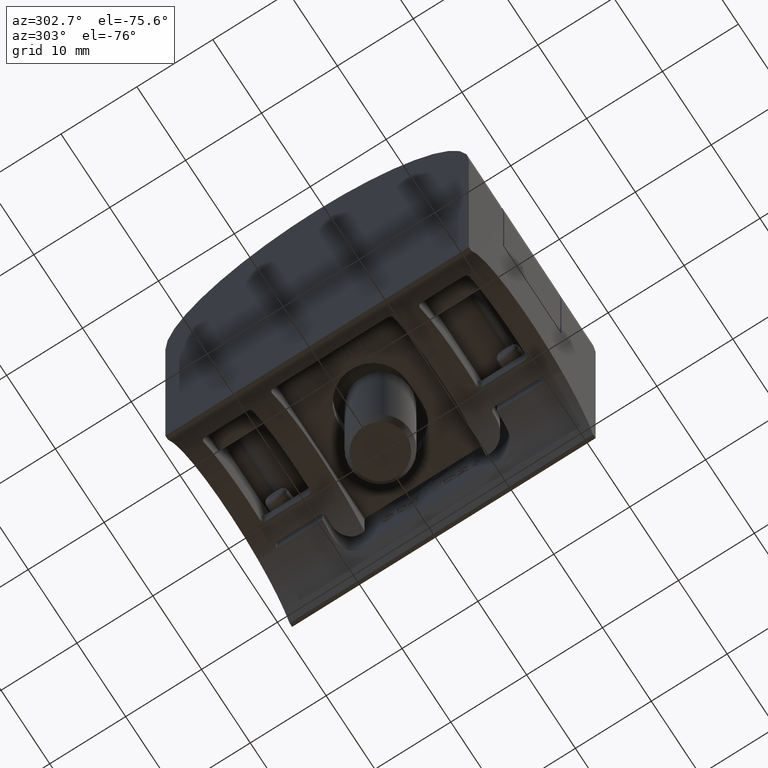
[diagram: clean part render]
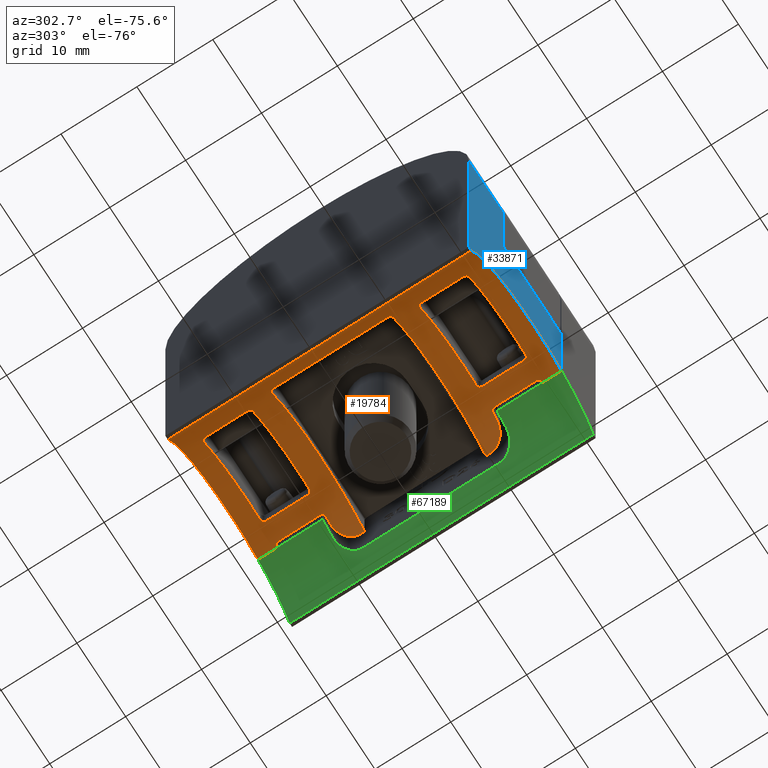
[diagram: same view with three faces highlighted in distinct colors, each labeled with its STEP entity id]
A machine part, auxiliary view with three faces highlighted in distinct colors.
Their STEP definitions:

[orange] entity #19784 — the highlighted cylindrical surface (partial cylindrical patch) has radius 13.45 mm, axis along (0, 1, 0).
#485 = CARTESIAN_POINT ( 'NONE',  ( 11.50000000000000000, -20.00000000000000355, -26.17594199133800004 ) ) ;
#693 = CARTESIAN_POINT ( 'NONE',  ( 14.89824602917667207, 9.703242428721132740, -28.36371242191209063 ) ) ;
#708 = CARTESIAN_POINT ( 'NONE',  ( 9.000000000000003553, -11.36647832932991165, -25.33884063097394090 ) ) ;
#722 = CARTESIAN_POINT ( 'NONE',  ( 11.51466624453556875, 11.36180625761915230, -26.18248772941737101 ) ) ;
#752 = CARTESIAN_POINT ( 'NONE',  ( 5.999999999999999112, -17.50000000000000000, -38.45000000000000284 ) ) ;
#803 = CARTESIAN_POINT ( 'NONE',  ( -3.116787472179068708, -17.50000000000000000, -28.56003619182556363 ) ) ;
#920 = ORIENTED_EDGE ( 'NONE', *, *, #3563, .F. ) ;
#926 = CARTESIAN_POINT ( 'NONE',  ( 15.20000000000000107, 8.499999999999996447, -28.63865452651880972 ) ) ;
#976 = DIRECTION ( 'NONE',  ( 0.000000000000000000, -1.000000000000000000, 0.000000000000000000 ) ) ;
#1126 = LINE ( 'NONE', #29620, #58291 ) ;
#1285 = CARTESIAN_POINT ( 'NONE',  ( 8.499999999999998224, -11.00000000000000000, -25.23438423682044629 ) ) ;
#1454 = CARTESIAN_POINT ( 'NONE',  ( 12.00000000000000000, 11.00000000000000000, -26.41245456914077039 ) ) ;
#1531 = CARTESIAN_POINT ( 'NONE',  ( -6.500000000000002665, -20.00000000000000355, -33.48487160286867237 ) ) ;
#1687 = B_SPLINE_CURVE_WITH_KNOTS ( 'NONE', 3,
 ( #46844, #14415, #69790, #63778, #30623, #52167 ),
 .UNSPECIFIED., .F., .F.,
 ( 4, 2, 4 ),
 ( 0.000000000000000000, 0.0004119517091872325126, 0.0008239034183744650252 ),
 .UNSPECIFIED. ) ;
#1957 = EDGE_CURVE ( 'NONE', #22225, #15214, #47179, .T. ) ;
#2061 = DIRECTION ( 'NONE',  ( 0.000000000000000000, 0.000000000000000000, -1.000000000000000000 ) ) ;
#2555 = CARTESIAN_POINT ( 'NONE',  ( -3.480638101571031484, 17.15542226786005386, -28.90945615330744900 ) ) ;
#2930 = ORIENTED_EDGE ( 'NONE', *, *, #24466, .F. ) ;
#3112 = ORIENTED_EDGE ( 'NONE', *, *, #7789, .F. ) ;
#3160 = VERTEX_POINT ( 'NONE', #56920 ) ;
#3343 = LINE ( 'NONE', #1531, #18952 ) ;
#3563 = EDGE_CURVE ( 'NONE', #3160, #20133, #12323, .T. ) ;
#3586 = EDGE_CURVE ( 'NONE', #27814, #52146, #32881, .T. ) ;
#3707 = CARTESIAN_POINT ( 'NONE',  ( -3.230471137412689764, -11.03847640144113207, -28.66640633115029857 ) ) ;
#3725 = DIRECTION ( 'NONE',  ( 0.000000000000000000, -1.000000000000000000, 0.000000000000000000 ) ) ;
#3858 = CARTESIAN_POINT ( 'NONE',  ( 11.50000000000000000, -17.00000000000000000, -26.17594199133800004 ) ) ;
#3919 = ORIENTED_EDGE ( 'NONE', *, *, #9674, .F. ) ;
#4310 = VERTEX_POINT ( 'NONE', #1285 ) ;
#4455 = VERTEX_POINT ( 'NONE', #46550 ) ;
#5014 = CARTESIAN_POINT ( 'NONE',  ( 8.499999999999998224, 17.50000000000000000, -25.23438423682044629 ) ) ;
#5423 = CARTESIAN_POINT ( 'NONE',  ( 13.02004663917994698, -11.00000000000000000, -26.97142511849517987 ) ) ;
#5528 = ORIENTED_EDGE ( 'NONE', *, *, #66053, .T. ) ;
#5664 = CARTESIAN_POINT ( 'NONE',  ( 14.15784761918223111, -10.53680026937990633, -27.75520414160551042 ) ) ;
#5848 = VERTEX_POINT ( 'NONE', #46754 ) ;
#6078 = ORIENTED_EDGE ( 'NONE', *, *, #35589, .T. ) ;
#6797 = CARTESIAN_POINT ( 'NONE',  ( 11.50000000000000000, 17.00000000000000000, -26.17594199133800004 ) ) ;
#6907 = LINE ( 'NONE', #56272, #40695 ) ;
#6931 = CARTESIAN_POINT ( 'NONE',  ( 15.20000000000000107, -8.000000000000000000, -28.63865452651880972 ) ) ;
#7165 = ORIENTED_EDGE ( 'NONE', *, *, #63368, .T. ) ;
#7255 = CARTESIAN_POINT ( 'NONE',  ( -3.499999999999999556, 17.00000000000000000, -28.92883935646499438 ) ) ;
#7266 = VECTOR ( 'NONE', #30347, 1000.000000000000000 ) ;
#7416 = CARTESIAN_POINT ( 'NONE',  ( 5.999999999999999112, -20.00000000000000355, -38.45000000000000284 ) ) ;
#7555 = CARTESIAN_POINT ( 'NONE',  ( 8.631068430568314298, 11.00000000000000000, -25.25917847133003136 ) ) ;
#7580 = CARTESIAN_POINT ( 'NONE',  ( -3.417236873706813061, 11.21522735533954673, -28.84686858059674464 ) ) ;
#7789 = EDGE_CURVE ( 'NONE', #34888, #40124, #50195, .T. ) ;
#8600 = CARTESIAN_POINT ( 'NONE',  ( 8.499999999999998224, 17.50000000000000000, -25.23438423682044629 ) ) ;
#8788 = CARTESIAN_POINT ( 'NONE',  ( 11.50000000000000000, -17.00000000000000000, -26.17594199133800004 ) ) ;
#8834 = CARTESIAN_POINT ( 'NONE',  ( 5.999999999999999112, 17.50000000000000000, -38.45000000000000284 ) ) ;
#9273 = CARTESIAN_POINT ( 'NONE',  ( -3.116788535425766504, -10.99999999999999822, -28.56003714921443049 ) ) ;
#9317 = VERTEX_POINT ( 'NONE', #6797 ) ;
#9325 = B_SPLINE_CURVE_WITH_KNOTS ( 'NONE', 3,
 ( #57907, #13641, #30571, #24552, #30337, #63014 ),
 .UNSPECIFIED., .F., .F.,
 ( 4, 2, 4 ),
 ( 0.000000000000000000, 0.0003946573699596246480, 0.0007893147399192492961 ),
 .UNSPECIFIED. ) ;
#9328 = CARTESIAN_POINT ( 'NONE',  ( 12.00000000000000000, -20.00000000000000355, -26.41245456914077039 ) ) ;
#9393 = CARTESIAN_POINT ( 'NONE',  ( -3.800000000000001155, 8.000000000000000000, -29.23791554532852288 ) ) ;
#9636 = VERTEX_POINT ( 'NONE', #6931 ) ;
#9674 = EDGE_CURVE ( 'NONE', #67375, #56448, #34447, .T. ) ;
#9731 = CARTESIAN_POINT ( 'NONE',  ( 11.56133594012009347, -11.22689549974325374, -26.20316668575613761 ) ) ;
#9847 = DIRECTION ( 'NONE',  ( 0.000000000000000000, 1.000000000000000000, 0.000000000000000000 ) ) ;
#9874 = CARTESIAN_POINT ( 'NONE',  ( 9.000000000000000000, -20.00000000000000355, -25.33884063097394090 ) ) ;
#9941 = CARTESIAN_POINT ( 'NONE',  ( 5.999999999999999112, -20.00000000000000355, -38.45000000000000284 ) ) ;
#10277 = ORIENTED_EDGE ( 'NONE', *, *, #63604, .T. ) ;
#10484 = CARTESIAN_POINT ( 'NONE',  ( 8.499999999999998224, 11.00000000000000000, -25.23438423682044629 ) ) ;
#10872 = CARTESIAN_POINT ( 'NONE',  ( -3.499999999999999556, 11.50000000000000355, -28.92883935646499438 ) ) ;
#11465 = CARTESIAN_POINT ( 'NONE',  ( 14.28329567557198310, -10.44117638296501660, -27.85228546513123504 ) ) ;
#11484 = VECTOR ( 'NONE', #22547, 1000.000000000000000 ) ;
#11552 = ORIENTED_EDGE ( 'NONE', *, *, #21408, .F. ) ;
#11692 = ORIENTED_EDGE ( 'NONE', *, *, #62028, .T. ) ;
#11911 = VECTOR ( 'NONE', #66588, 1000.000000000000000 ) ;
#12146 = CARTESIAN_POINT ( 'NONE',  ( 11.50000000000000000, 11.50000000000000178, -26.17594199133800004 ) ) ;
#12323 = LINE ( 'NONE', #50599, #58307 ) ;
#12326 = CARTESIAN_POINT ( 'NONE',  ( 11.49999999999999645, 11.43015185219893048, -26.17594199133798938 ) ) ;
#12348 = DIRECTION ( 'NONE',  ( 0.000000000000000000, 0.000000000000000000, -1.000000000000000000 ) ) ;
#12416 = CARTESIAN_POINT ( 'NONE',  ( -3.499999999999998224, -17.07921779552292918, -28.92883935646498372 ) ) ;
#12452 = CARTESIAN_POINT ( 'NONE',  ( 5.999999999999999112, 20.00000000000000000, -38.45000000000000284 ) ) ;
#12630 = ORIENTED_EDGE ( 'NONE', *, *, #25591, .T. ) ;
#12808 = EDGE_CURVE ( 'NONE', #20196, #20133, #49756, .T. ) ;
#12894 = CARTESIAN_POINT ( 'NONE',  ( 9.000000000000001776, 11.36653055818732483, -25.33884063097394090 ) ) ;
#13154 = CARTESIAN_POINT ( 'NONE',  ( -3.480624985987029074, 11.34449536735996489, -28.90944271706774060 ) ) ;
#13641 = CARTESIAN_POINT ( 'NONE',  ( 9.000000000000000000, -17.13346944181267162, -25.33884063097394090 ) ) ;
#13843 = EDGE_CURVE ( 'NONE', #32103, #41923, #71278, .T. ) ;
#14415 = CARTESIAN_POINT ( 'NONE',  ( 11.50000000000000178, 17.13937178416392015, -26.17594199133800004 ) ) ;
#14430 = DIRECTION ( 'NONE',  ( 0.000000000000000000, 0.000000000000000000, 1.000000000000000000 ) ) ;
#14671 = CARTESIAN_POINT ( 'NONE',  ( -3.116788535425766060, 17.50000000000000711, -28.56003714921443759 ) ) ;
#14737 = CIRCLE ( 'NONE', #43318, 13.44999999999999929 ) ;
#15111 = CARTESIAN_POINT ( 'NONE',  ( 5.999999999999999112, -11.00000000000000000, -38.45000000000000284 ) ) ;
#15214 = VERTEX_POINT ( 'NONE', #10872 ) ;
#15545 = CARTESIAN_POINT ( 'NONE',  ( 12.00000000000000000, -20.00000000000000355, -26.41245456914077039 ) ) ;
#15608 = FACE_BOUND ( 'NONE', #49776, .T. ) ;
#15657 = VECTOR ( 'NONE', #37169, 1000.000000000000000 ) ;
#15698 = VERTEX_POINT ( 'NONE', #64817 ) ;
#16224 = EDGE_CURVE ( 'NONE', #3160, #66927, #30585, .T. ) ;
#16306 = EDGE_CURVE ( 'NONE', #70873, #9636, #1126, .T. ) ;
#16418 = DIRECTION ( 'NONE',  ( 0.000000000000000000, 0.000000000000000000, 1.000000000000000000 ) ) ;
#16584 = DIRECTION ( 'NONE',  ( 0.000000000000000000, 1.000000000000000000, 0.000000000000000000 ) ) ;
#16837 = B_SPLINE_CURVE_WITH_KNOTS ( 'NONE', 3,
 ( #28086, #67047, #27359, #50336, #708, #39450 ),
 .UNSPECIFIED., .F., .F.,
 ( 4, 2, 4 ),
 ( 0.000000000000000000, 0.0003946608347926983118, 0.0007893216695853966236 ),
 .UNSPECIFIED. ) ;
#17042 = CARTESIAN_POINT ( 'NONE',  ( -3.800000000000001155, 8.000000000000000000, -29.23791554532852288 ) ) ;
#17449 = CARTESIAN_POINT ( 'NONE',  ( 11.50000000000000000, 11.50000000000000178, -26.17594199133800004 ) ) ;
#17518 = EDGE_CURVE ( 'NONE', #66788, #48210, #67846, .T. ) ;
#17565 = CARTESIAN_POINT ( 'NONE',  ( -3.499999999999999556, -17.00000000000000000, -28.92883935646499438 ) ) ;
#17898 = CARTESIAN_POINT ( 'NONE',  ( 14.51067331575046815, 10.23099226390288052, -28.03400459044137705 ) ) ;
#18066 = DIRECTION ( 'NONE',  ( 0.000000000000000000, -1.000000000000000000, 0.000000000000000000 ) ) ;
#18146 = ORIENTED_EDGE ( 'NONE', *, *, #67897, .F. ) ;
#18511 = DIRECTION ( 'NONE',  ( -0.000000000000000000, 1.000000000000000000, -0.000000000000000000 ) ) ;
#18794 = VERTEX_POINT ( 'NONE', #58238 ) ;
#18895 = CARTESIAN_POINT ( 'NONE',  ( -4.019377870066455749, -7.952884460722507320, -29.47665369427974724 ) ) ;
#18952 = VECTOR ( 'NONE', #18511, 1000.000000000000000 ) ;
#19095 = AXIS2_PLACEMENT_3D ( 'NONE', #752, #976, #12348 ) ;
#19190 = CARTESIAN_POINT ( 'NONE',  ( 8.499999999999998224, 11.00000000000000000, -25.23438423682044629 ) ) ;
#19482 = CARTESIAN_POINT ( 'NONE',  ( 12.00000000000000000, -11.00000000000000000, -26.41245456914077039 ) ) ;
#19770 = CARTESIAN_POINT ( 'NONE',  ( 9.000000000000003553, 17.13352167067008835, -25.33884063097394090 ) ) ;
#19784 = ADVANCED_FACE ( 'NONE', ( #30311, #35462, #15608 ), #47614, .F. ) ;
#20133 = VERTEX_POINT ( 'NONE', #30717 ) ;
#20196 = VERTEX_POINT ( 'NONE', #54131 ) ;
#20203 = CARTESIAN_POINT ( 'NONE',  ( -3.480638101571031484, -11.34457773213994614, -28.90945615330744900 ) ) ;
#20242 = ORIENTED_EDGE ( 'NONE', *, *, #42070, .T. ) ;
#20262 = CARTESIAN_POINT ( 'NONE',  ( -3.374676448403691520, 17.33711689858768068, -28.80518833197421458 ) ) ;
#20898 = CARTESIAN_POINT ( 'NONE',  ( 11.50000000000000178, -11.36062821583607807, -26.17594199133800004 ) ) ;
#20916 = DIRECTION ( 'NONE',  ( 0.000000000000000000, 0.000000000000000000, -1.000000000000000000 ) ) ;
#20944 = CARTESIAN_POINT ( 'NONE',  ( 9.000000000000000000, -17.00000000000000000, -25.33884063097394090 ) ) ;
#21408 = EDGE_CURVE ( 'NONE', #40124, #33346, #49414, .T. ) ;
#21512 = EDGE_CURVE ( 'NONE', #5848, #58676, #53534, .T. ) ;
#22041 = LINE ( 'NONE', #69519, #7266 ) ;
#22225 = VERTEX_POINT ( 'NONE', #53656 ) ;
#22547 = DIRECTION ( 'NONE',  ( -0.000000000000000000, 1.000000000000000000, -0.000000000000000000 ) ) ;
#23006 = CARTESIAN_POINT ( 'NONE',  ( 5.999999999999999112, -8.000000000000000000, -38.45000000000000284 ) ) ;
#23007 = CARTESIAN_POINT ( 'NONE',  ( 13.89368829465758104, 10.70202348153957495, -27.55877577456394789 ) ) ;
#23060 = ORIENTED_EDGE ( 'NONE', *, *, #17518, .F. ) ;
#23118 = ORIENTED_EDGE ( 'NONE', *, *, #1957, .F. ) ;
#23152 = DIRECTION ( 'NONE',  ( 0.000000000000000000, 1.000000000000000000, 0.000000000000000000 ) ) ;
#23255 = CARTESIAN_POINT ( 'NONE',  ( 8.499999999999998224, -17.50000000000000000, -25.23438423682044629 ) ) ;
#23354 = CARTESIAN_POINT ( 'NONE',  ( -3.480624985987027298, -17.15550463264003866, -28.90944271706774060 ) ) ;
#23551 = EDGE_CURVE ( 'NONE', #41935, #5848, #34290, .T. ) ;
#23672 = VECTOR ( 'NONE', #18066, 1000.000000000000000 ) ;
#23736 = CIRCLE ( 'NONE', #60259, 13.44999999999999929 ) ;
#23930 = ORIENTED_EDGE ( 'NONE', *, *, #28601, .T. ) ;
#24101 = CARTESIAN_POINT ( 'NONE',  ( 5.999999999999999112, 8.000000000000000000, -38.45000000000000284 ) ) ;
#24319 = CARTESIAN_POINT ( 'NONE',  ( -3.499999999999999556, 11.50000000000000355, -28.92883935646499438 ) ) ;
#24394 = DIRECTION ( 'NONE',  ( 0.000000000000000000, 1.000000000000000000, 0.000000000000000000 ) ) ;
#24453 = CARTESIAN_POINT ( 'NONE',  ( -3.800000000000001155, -8.000000000000000000, -29.23791554532852288 ) ) ;
#24466 = EDGE_CURVE ( 'NONE', #46536, #60356, #71626, .T. ) ;
#24477 = EDGE_CURVE ( 'NONE', #18794, #4455, #33189, .T. ) ;
#24552 = CARTESIAN_POINT ( 'NONE',  ( 8.759555130756153218, -17.44673513693500055, -25.28579463575531960 ) ) ;
#24610 = CIRCLE ( 'NONE', #30153, 13.44999999999999929 ) ;
#24866 = CARTESIAN_POINT ( 'NONE',  ( -3.500000000000000444, 17.07923721043015064, -28.92883935646499438 ) ) ;
#25159 = CARTESIAN_POINT ( 'NONE',  ( -4.300000000000001599, -7.583890562893208731, -29.80057805399691162 ) ) ;
#25296 = CARTESIAN_POINT ( 'NONE',  ( 12.00000000000000000, 17.50000000000000000, -26.41245456914077039 ) ) ;
#25524 = ORIENTED_EDGE ( 'NONE', *, *, #61712, .T. ) ;
#25591 = EDGE_CURVE ( 'NONE', #66799, #15698, #60975, .T. ) ;
#25726 = ORIENTED_EDGE ( 'NONE', *, *, #35274, .F. ) ;
#26070 = AXIS2_PLACEMENT_3D ( 'NONE', #7416, #24394, #68395 ) ;
#26323 = ORIENTED_EDGE ( 'NONE', *, *, #16224, .T. ) ;
#26497 = ORIENTED_EDGE ( 'NONE', *, *, #23551, .F. ) ;
#26663 = DIRECTION ( 'NONE',  ( -0.000000000000000000, 1.000000000000000000, -0.000000000000000000 ) ) ;
#26796 = EDGE_CURVE ( 'NONE', #46163, #41935, #53530, .T. ) ;
#26892 = EDGE_CURVE ( 'NONE', #48210, #46163, #65608, .T. ) ;
#27346 = VECTOR ( 'NONE', #65553, 1000.000000000000000 ) ;
#27359 = CARTESIAN_POINT ( 'NONE',  ( 8.759102418150586544, -11.05294006506115956, -25.28569817727868596 ) ) ;
#27463 = CARTESIAN_POINT ( 'NONE',  ( 15.10181010586828165, -9.216669129996807541, -28.54735559945195433 ) ) ;
#27538 = ORIENTED_EDGE ( 'NONE', *, *, #16306, .F. ) ;
#27628 = B_SPLINE_CURVE_WITH_KNOTS ( 'NONE', 3,
 ( #49482, #55009, #38122, #27463, #27936, #43706, #38603, #71689, #60124, #11465, #5664, #55256, #60615, #65688, #5423, #38361 ),
 .UNSPECIFIED., .F., .F.,
 ( 4, 2, 2, 2, 2, 2, 2, 4 ),
 ( 0.000000000000000000, 0.0005468264234543342454, 0.001093652846908668491, 0.001640479270363002845, 0.002187305693817336982, 0.002734132117271671335, 0.003280958540726005689, 0.004374611387634680035 ),
 .UNSPECIFIED. ) ;
#27814 = VERTEX_POINT ( 'NONE', #1454 ) ;
#27936 = CARTESIAN_POINT ( 'NONE',  ( 15.04409113667162678, -9.385807170587478154, -28.49429212487095597 ) ) ;
#27959 = LINE ( 'NONE', #485, #11484 ) ;
#28086 = CARTESIAN_POINT ( 'NONE',  ( 8.499999999999998224, -11.00000000000000000, -25.23438423682044629 ) ) ;
#28201 = CARTESIAN_POINT ( 'NONE',  ( 12.00000000000000000, 20.00000000000000000, -26.41245456914077039 ) ) ;
#28334 = CARTESIAN_POINT ( 'NONE',  ( 11.87540656933415129, 11.00000000000000000, -26.35035215895350191 ) ) ;
#28538 = DIRECTION ( 'NONE',  ( 0.000000000000000000, 0.000000000000000000, 1.000000000000000000 ) ) ;
#28601 = EDGE_CURVE ( 'NONE', #70873, #32783, #27628, .T. ) ;
#28707 = ORIENTED_EDGE ( 'NONE', *, *, #38733, .F. ) ;
#29013 = CARTESIAN_POINT ( 'NONE',  ( 12.70000000000000107, 11.00000000000000000, -26.78756028954490631 ) ) ;
#29620 = CARTESIAN_POINT ( 'NONE',  ( 15.20000000000000107, -20.00000000000000355, -28.63865452651880972 ) ) ;
#30110 = CARTESIAN_POINT ( 'NONE',  ( 11.56936935272592315, -17.26306579073444780, -26.20722555502909401 ) ) ;
#30153 = AXIS2_PLACEMENT_3D ( 'NONE', #49304, #9847, #16418 ) ;
#30311 = FACE_OUTER_BOUND ( 'NONE', #65237, .T. ) ;
#30337 = CARTESIAN_POINT ( 'NONE',  ( 8.631068430568314298, -17.50000000000000355, -25.25917847133003136 ) ) ;
#30347 = DIRECTION ( 'NONE',  ( -0.000000000000000000, 1.000000000000000000, -0.000000000000000000 ) ) ;
#30391 = EDGE_LOOP ( 'NONE', ( #70964, #69398, #7165, #11552, #3112, #18146, #38447, #71768 ) ) ;
#30571 = CARTESIAN_POINT ( 'NONE',  ( 8.944434467978718217, -17.26347514521611615, -25.32590943891845114 ) ) ;
#30585 = CIRCLE ( 'NONE', #68717, 13.44999999999999751 ) ;
#30623 = CARTESIAN_POINT ( 'NONE',  ( 11.87558577690494133, 17.50000000000000355, -26.35044148326225866 ) ) ;
#30642 = CARTESIAN_POINT ( 'NONE',  ( 8.631118969976018462, 17.50000000000000355, -25.25918803187729722 ) ) ;
#30717 = CARTESIAN_POINT ( 'NONE',  ( 15.20000000000000107, 8.499999999999996447, -28.63865452651880972 ) ) ;
#30729 = ORIENTED_EDGE ( 'NONE', *, *, #47998, .F. ) ;
#30877 = CARTESIAN_POINT ( 'NONE',  ( 8.944408087051730405, 17.26362492424279438, -25.32590194906893544 ) ) ;
#31361 = CARTESIAN_POINT ( 'NONE',  ( -3.499999999999999556, 17.00000000000000000, -28.92883935646499438 ) ) ;
#31636 = ORIENTED_EDGE ( 'NONE', *, *, #13843, .T. ) ;
#32103 = VERTEX_POINT ( 'NONE', #66862 ) ;
#32294 = CIRCLE ( 'NONE', #44625, 13.44999999999999751 ) ;
#32783 = VERTEX_POINT ( 'NONE', #61675 ) ;
#32881 = B_SPLINE_CURVE_WITH_KNOTS ( 'NONE', 3,
 ( #39698, #28334, #45296, #67058, #33649, #722, #12326, #17449 ),
 .UNSPECIFIED., .F., .F.,
 ( 4, 2, 2, 4 ),
 ( 0.000000000000000000, 0.0004119365206307883261, 0.0006179047809461808358, 0.0008238730412615733996 ),
 .UNSPECIFIED. ) ;
#33179 = CARTESIAN_POINT ( 'NONE',  ( 11.50000000000000000, -20.00000000000000355, -26.17594199133800004 ) ) ;
#33189 = B_SPLINE_CURVE_WITH_KNOTS ( 'NONE', 3,
 ( #53315, #43176, #20203, #36879, #48005, #3707, #9273, #42939 ),
 .UNSPECIFIED., .F., .F.,
 ( 4, 2, 2, 4 ),
 ( 0.000000000000000000, 0.0002335814450704163520, 0.0004671628901408327039, 0.0009343257802816635647 ),
 .UNSPECIFIED. ) ;
#33275 = CARTESIAN_POINT ( 'NONE',  ( 9.000000000000000000, 17.00000000000000000, -25.33884063097394090 ) ) ;
#33346 = VERTEX_POINT ( 'NONE', #17565 ) ;
#33465 = CARTESIAN_POINT ( 'NONE',  ( -4.211134404573490642, 7.793891276124054635, -29.69569120716201382 ) ) ;
#33579 = LINE ( 'NONE', #33179, #11911 ) ;
#33649 = CARTESIAN_POINT ( 'NONE',  ( 11.56936935272592670, 11.23693420926555397, -26.20722555502909401 ) ) ;
#33700 = CARTESIAN_POINT ( 'NONE',  ( -4.167484031559555824, 7.844674103367463402, -29.64488761452970067 ) ) ;
#33854 = CARTESIAN_POINT ( 'NONE',  ( 13.32313539717053885, 10.94066499471007781, -27.16303500899367762 ) ) ;
#33969 = CARTESIAN_POINT ( 'NONE',  ( -2.999999999999999112, -17.50000000000000000, -28.45487618886089720 ) ) ;
#34102 = CARTESIAN_POINT ( 'NONE',  ( 15.20000000000000284, 8.685665373290950342, -28.63865452651880616 ) ) ;
#34290 = LINE ( 'NONE', #9874, #27346 ) ;
#34303 = DIRECTION ( 'NONE',  ( 0.000000000000000000, -1.000000000000000000, 0.000000000000000000 ) ) ;
#34447 = CIRCLE ( 'NONE', #26070, 13.44999999999999929 ) ;
#34579 = CARTESIAN_POINT ( 'NONE',  ( 14.61957888634192315, 10.10994047975543353, -28.12423381090563623 ) ) ;
#34888 = VERTEX_POINT ( 'NONE', #23255 ) ;
#35175 = CARTESIAN_POINT ( 'NONE',  ( 8.759555130756153218, 11.05326486306500122, -25.28579463575531960 ) ) ;
#35228 = CARTESIAN_POINT ( 'NONE',  ( -3.499999999999999556, -20.00000000000000355, -28.92883935646499438 ) ) ;
#35274 = EDGE_CURVE ( 'NONE', #9317, #39585, #1687, .T. ) ;
#35462 = FACE_BOUND ( 'NONE', #30391, .T. ) ;
#35589 = EDGE_CURVE ( 'NONE', #27814, #20196, #14737, .T. ) ;
#35663 = CARTESIAN_POINT ( 'NONE',  ( -3.230655488116156437, 11.03872484848198354, -28.66658760831958830 ) ) ;
#35741 = ORIENTED_EDGE ( 'NONE', *, *, #21512, .F. ) ;
#35911 = DIRECTION ( 'NONE',  ( -0.000000000000000000, 1.000000000000000000, -0.000000000000000000 ) ) ;
#36047 = CARTESIAN_POINT ( 'NONE',  ( -4.167032218218342798, -7.845128266877813061, -29.64436690656613393 ) ) ;
#36288 = CARTESIAN_POINT ( 'NONE',  ( -4.300000000000001599, -7.500000000000000000, -29.80057805399690807 ) ) ;
#36879 = CARTESIAN_POINT ( 'NONE',  ( -3.417373484413046558, -11.21545046031054582, -28.84700294914667396 ) ) ;
#36926 = CARTESIAN_POINT ( 'NONE',  ( 9.000000000000000000, 17.00000000000000000, -25.33884063097394090 ) ) ;
#37114 = CARTESIAN_POINT ( 'NONE',  ( 12.00000000000000000, -11.00000000000000000, -26.41245456914077039 ) ) ;
#37121 = LINE ( 'NONE', #15545, #45835 ) ;
#37169 = DIRECTION ( 'NONE',  ( 0.000000000000000000, -1.000000000000000000, 0.000000000000000000 ) ) ;
#37310 = DIRECTION ( 'NONE',  ( 0.000000000000000000, 0.000000000000000000, 1.000000000000000000 ) ) ;
#37346 = ORIENTED_EDGE ( 'NONE', *, *, #3586, .F. ) ;
#38122 = CARTESIAN_POINT ( 'NONE',  ( 15.17962903114094964, -8.865713404819141275, -28.61944944687095571 ) ) ;
#38152 = VERTEX_POINT ( 'NONE', #44713 ) ;
#38361 = CARTESIAN_POINT ( 'NONE',  ( 12.70000000000000107, -11.00000000000000000, -26.78756028954490631 ) ) ;
#38447 = ORIENTED_EDGE ( 'NONE', *, *, #47986, .T. ) ;
#38518 = EDGE_CURVE ( 'NONE', #66799, #66927, #42113, .T. ) ;
#38603 = CARTESIAN_POINT ( 'NONE',  ( 14.81434557677254737, -9.843946814570108117, -28.28998887233768400 ) ) ;
#38700 = VERTEX_POINT ( 'NONE', #3858 ) ;
#38733 = EDGE_CURVE ( 'NONE', #38700, #46536, #27959, .T. ) ;
#39285 = CARTESIAN_POINT ( 'NONE',  ( -4.278324039308303739, 7.663124781151160470, -29.77467618981274100 ) ) ;
#39437 = CARTESIAN_POINT ( 'NONE',  ( 15.10024297222439316, 9.221999572938662126, -28.54591217033654615 ) ) ;
#39450 = CARTESIAN_POINT ( 'NONE',  ( 9.000000000000000000, -11.50000000000000178, -25.33884063097394090 ) ) ;
#39509 = CARTESIAN_POINT ( 'NONE',  ( 15.20000000000000107, -8.499999999999998224, -28.63865452651880972 ) ) ;
#39543 = CARTESIAN_POINT ( 'NONE',  ( -3.417236873706812172, -17.28477264466046392, -28.84686858059674464 ) ) ;
#39585 = VERTEX_POINT ( 'NONE', #25296 ) ;
#39672 = CARTESIAN_POINT ( 'NONE',  ( 14.81277762783038199, 9.846425692188125467, -28.28862518887683919 ) ) ;
#39698 = CARTESIAN_POINT ( 'NONE',  ( 12.00000000000000000, 11.00000000000000000, -26.41245456914077039 ) ) ;
#40124 = VERTEX_POINT ( 'NONE', #66070 ) ;
#40288 = CARTESIAN_POINT ( 'NONE',  ( -3.374280382620928442, 11.16249685173698580, -28.80480523786568625 ) ) ;
#40347 = CARTESIAN_POINT ( 'NONE',  ( -6.500000000000002665, -20.00000000000000355, -33.48487160286867237 ) ) ;
#40695 = VECTOR ( 'NONE', #34303, 1000.000000000000000 ) ;
#40912 = CARTESIAN_POINT ( 'NONE',  ( -3.856894653083691615, -7.999999999999998224, -29.29844121712014626 ) ) ;
#40980 = CARTESIAN_POINT ( 'NONE',  ( 9.000000000000000000, 11.50000000000000355, -25.33884063097394090 ) ) ;
#41256 = CARTESIAN_POINT ( 'NONE',  ( 12.00000000000000000, -17.50000000000000000, -26.41245456914077039 ) ) ;
#41923 = VERTEX_POINT ( 'NONE', #28201 ) ;
#41935 = VERTEX_POINT ( 'NONE', #33275 ) ;
#42018 = ORIENTED_EDGE ( 'NONE', *, *, #38518, .F. ) ;
#42070 = EDGE_CURVE ( 'NONE', #67375, #32103, #3343, .T. ) ;
#42113 = B_SPLINE_CURVE_WITH_KNOTS ( 'NONE', 3,
 ( #61302, #50652, #39285, #33465, #33700, #49933, #44645, #17042 ),
 .UNSPECIFIED., .F., .F.,
 ( 4, 2, 2, 4 ),
 ( 0.000000000000000000, 0.0002469649858477842826, 0.0004939299716955685652, 0.0009878599433911379978 ),
 .UNSPECIFIED. ) ;
#42329 = EDGE_CURVE ( 'NONE', #56448, #61723, #37121, .T. ) ;
#42939 = CARTESIAN_POINT ( 'NONE',  ( -2.999999999999999112, -11.00000000000000000, -28.45487618886089720 ) ) ;
#43176 = CARTESIAN_POINT ( 'NONE',  ( -3.499999999999999556, -11.42076278956985114, -28.92883935646499438 ) ) ;
#43318 = AXIS2_PLACEMENT_3D ( 'NONE', #60851, #16584, #44412 ) ;
#43566 = EDGE_CURVE ( 'NONE', #9317, #52146, #33579, .T. ) ;
#43706 = CARTESIAN_POINT ( 'NONE',  ( 14.90115370763255420, -9.697639326284056338, -28.36629202840403252 ) ) ;
#43809 = EDGE_CURVE ( 'NONE', #38152, #15698, #68147, .T. ) ;
#44412 = DIRECTION ( 'NONE',  ( 0.000000000000000000, 0.000000000000000000, 1.000000000000000000 ) ) ;
#44625 = AXIS2_PLACEMENT_3D ( 'NONE', #15111, #3725, #20916 ) ;
#44645 = CARTESIAN_POINT ( 'NONE',  ( -3.913724704381053687, 7.999999999999998224, -29.35889816423722110 ) ) ;
#44713 = CARTESIAN_POINT ( 'NONE',  ( -3.800000000000001155, -8.000000000000000000, -29.23791554532852288 ) ) ;
#44801 = CARTESIAN_POINT ( 'NONE',  ( 12.00000000000000000, -17.50000000000000000, -26.41245456914077039 ) ) ;
#45085 = CARTESIAN_POINT ( 'NONE',  ( -4.300000000000001599, 7.500000000000000000, -29.80057805399690807 ) ) ;
#45137 = CARTESIAN_POINT ( 'NONE',  ( -3.499999999999999556, -17.00000000000000000, -28.92883935646499438 ) ) ;
#45296 = CARTESIAN_POINT ( 'NONE',  ( 11.75212678668922273, 11.04617825859952518, -26.29160017484655398 ) ) ;
#45626 = CARTESIAN_POINT ( 'NONE',  ( 11.87540656933415129, -17.50000000000000000, -26.35035215895350191 ) ) ;
#45680 = CARTESIAN_POINT ( 'NONE',  ( 5.999999999999999112, -11.00000000000000000, -38.45000000000000284 ) ) ;
#45835 = VECTOR ( 'NONE', #59802, 1000.000000000000000 ) ;
#46163 = VERTEX_POINT ( 'NONE', #5014 ) ;
#46256 = VECTOR ( 'NONE', #69827, 1000.000000000000000 ) ;
#46308 = EDGE_CURVE ( 'NONE', #4310, #4455, #53216, .T. ) ;
#46536 = VERTEX_POINT ( 'NONE', #54266 ) ;
#46550 = CARTESIAN_POINT ( 'NONE',  ( -2.999999999999999112, -11.00000000000000000, -28.45487618886089720 ) ) ;
#46591 = AXIS2_PLACEMENT_3D ( 'NONE', #9941, #26663, #37310 ) ;
#46754 = CARTESIAN_POINT ( 'NONE',  ( 9.000000000000000000, 11.50000000000000355, -25.33884063097394090 ) ) ;
#46844 = CARTESIAN_POINT ( 'NONE',  ( 11.50000000000000000, 17.00000000000000000, -26.17594199133800004 ) ) ;
#47179 = B_SPLINE_CURVE_WITH_KNOTS ( 'NONE', 3,
 ( #68798, #51643, #35663, #40288, #7580, #13154, #51880, #24319 ),
 .UNSPECIFIED., .F., .F.,
 ( 4, 2, 2, 4 ),
 ( 0.000000000000000000, 0.0004668484056165501809, 0.0007002726084248221813, 0.0009336968112330941818 ),
 .UNSPECIFIED. ) ;
#47532 = CARTESIAN_POINT ( 'NONE',  ( 11.49999999999999822, -17.06984814780107484, -26.17594199133798938 ) ) ;
#47576 = DIRECTION ( 'NONE',  ( -0.000000000000000000, 1.000000000000000000, 0.000000000000000000 ) ) ;
#47614 = CYLINDRICAL_SURFACE ( 'NONE', #46591, 13.44999999999999929 ) ;
#47740 = AXIS2_PLACEMENT_3D ( 'NONE', #45680, #62573, #2061 ) ;
#47986 = EDGE_CURVE ( 'NONE', #49721, #49143, #22041, .T. ) ;
#47998 = EDGE_CURVE ( 'NONE', #61723, #38700, #58454, .T. ) ;
#48005 = CARTESIAN_POINT ( 'NONE',  ( -3.374676448403692408, -11.16288310141231577, -28.80518833197422168 ) ) ;
#48045 = CARTESIAN_POINT ( 'NONE',  ( 8.759102418150584768, 17.44705993493884577, -25.28569817727868596 ) ) ;
#48210 = VERTEX_POINT ( 'NONE', #66851 ) ;
#49111 = ORIENTED_EDGE ( 'NONE', *, *, #43566, .T. ) ;
#49143 = VERTEX_POINT ( 'NONE', #64590 ) ;
#49304 = CARTESIAN_POINT ( 'NONE',  ( 5.999999999999999112, 11.00000000000000000, -38.45000000000000284 ) ) ;
#49355 = EDGE_CURVE ( 'NONE', #66788, #15214, #6907, .T. ) ;
#49414 = B_SPLINE_CURVE_WITH_KNOTS ( 'NONE', 3,
 ( #33969, #803, #51385, #56428, #39543, #23354, #12416, #45137 ),
 .UNSPECIFIED., .F., .F.,
 ( 4, 2, 2, 4 ),
 ( 0.000000000000000000, 0.0004668484056165488256, 0.0007002726084248197961, 0.0009336968112330908207 ),
 .UNSPECIFIED. ) ;
#49482 = CARTESIAN_POINT ( 'NONE',  ( 15.20000000000000107, -8.499999999999998224, -28.63865452651880972 ) ) ;
#49721 = VERTEX_POINT ( 'NONE', #20944 ) ;
#49756 = B_SPLINE_CURVE_WITH_KNOTS ( 'NONE', 3,
 ( #29013, #67258, #33854, #50795, #23007, #62397, #56312, #17898, #34579, #39672, #693, #56088, #39437, #55856, #34102, #926 ),
 .UNSPECIFIED., .F., .F.,
 ( 4, 2, 2, 2, 2, 2, 2, 4 ),
 ( 0.000000000000000000, 0.001088733333245754708, 0.001633099999868632820, 0.002177466666491511150, 0.002721833333114389263, 0.003266199999737266942, 0.003810566666360145488, 0.004354933332983024034 ),
 .UNSPECIFIED. ) ;
#49776 = EDGE_LOOP ( 'NONE', ( #11692, #35741, #26497, #54791, #70468, #23060, #69141, #23118 ) ) ;
#49933 = CARTESIAN_POINT ( 'NONE',  ( -4.024497122124611082, 7.963659407422602143, -29.48156089056517359 ) ) ;
#50043 = ORIENTED_EDGE ( 'NONE', *, *, #42329, .F. ) ;
#50195 = CIRCLE ( 'NONE', #19095, 13.44999999999999751 ) ;
#50336 = CARTESIAN_POINT ( 'NONE',  ( 8.944408087051732181, -11.23637507575719852, -25.32590194906893544 ) ) ;
#50599 = CARTESIAN_POINT ( 'NONE',  ( 15.20000000000000107, -20.00000000000000355, -28.63865452651880972 ) ) ;
#50652 = CARTESIAN_POINT ( 'NONE',  ( -4.300000000000001599, 7.583895603082869918, -29.80057805399691873 ) ) ;
#50795 = CARTESIAN_POINT ( 'NONE',  ( 13.75404523009153834, 10.77217395632988506, -27.45874755734961781 ) ) ;
#50823 = DIRECTION ( 'NONE',  ( -0.000000000000000000, 1.000000000000000000, -0.000000000000000000 ) ) ;
#51010 = EDGE_CURVE ( 'NONE', #4310, #49143, #16837, .T. ) ;
#51169 = ORIENTED_EDGE ( 'NONE', *, *, #12808, .T. ) ;
#51385 = CARTESIAN_POINT ( 'NONE',  ( -3.230655488116158658, -17.46127515151801290, -28.66658760831959896 ) ) ;
#51643 = CARTESIAN_POINT ( 'NONE',  ( -3.116787472179069152, 10.99999999999999822, -28.56003619182556363 ) ) ;
#51880 = CARTESIAN_POINT ( 'NONE',  ( -3.500000000000000444, 11.42078220447706727, -28.92883935646500504 ) ) ;
#52128 = CARTESIAN_POINT ( 'NONE',  ( 11.75212678668922273, -17.45382174140047127, -26.29160017484655398 ) ) ;
#52146 = VERTEX_POINT ( 'NONE', #12146 ) ;
#52167 = CARTESIAN_POINT ( 'NONE',  ( 12.00000000000000000, 17.50000000000000000, -26.41245456914077039 ) ) ;
#52602 = CARTESIAN_POINT ( 'NONE',  ( 11.51466624453557053, -17.13819374238084237, -26.18248772941737101 ) ) ;
#52886 = CARTESIAN_POINT ( 'NONE',  ( -3.417373484413047446, 17.28454953968945418, -28.84700294914668461 ) ) ;
#53053 = CARTESIAN_POINT ( 'NONE',  ( 12.00000000000000000, -20.00000000000000355, -26.41245456914077039 ) ) ;
#53140 = CARTESIAN_POINT ( 'NONE',  ( -4.300000000000001599, -20.00000000000000355, -29.80057805399690807 ) ) ;
#53216 = CIRCLE ( 'NONE', #47740, 13.44999999999999751 ) ;
#53315 = CARTESIAN_POINT ( 'NONE',  ( -3.499999999999999556, -11.50000000000000000, -28.92883935646499438 ) ) ;
#53372 = CARTESIAN_POINT ( 'NONE',  ( -2.999999999999999112, 17.50000000000000000, -28.45487618886089720 ) ) ;
#53530 = B_SPLINE_CURVE_WITH_KNOTS ( 'NONE', 3,
 ( #8600, #30642, #48045, #30877, #19770, #36926 ),
 .UNSPECIFIED., .F., .F.,
 ( 4, 2, 4 ),
 ( 0.000000000000000000, 0.0003946608347926974444, 0.0007893216695853948889 ),
 .UNSPECIFIED. ) ;
#53534 = B_SPLINE_CURVE_WITH_KNOTS ( 'NONE', 3,
 ( #40980, #12894, #68298, #35175, #7555, #19190 ),
 .UNSPECIFIED., .F., .F.,
 ( 4, 2, 4 ),
 ( 1.734723475976807094E-18, 0.0003946573699596268164, 0.0007893147399192518981 ),
 .UNSPECIFIED. ) ;
#53656 = CARTESIAN_POINT ( 'NONE',  ( -2.999999999999999112, 11.00000000000000000, -28.45487618886089720 ) ) ;
#54131 = CARTESIAN_POINT ( 'NONE',  ( 12.70000000000000107, 11.00000000000000000, -26.78756028954490631 ) ) ;
#54266 = CARTESIAN_POINT ( 'NONE',  ( 11.50000000000000000, -11.50000000000000178, -26.17594199133800004 ) ) ;
#54791 = ORIENTED_EDGE ( 'NONE', *, *, #26796, .F. ) ;
#55009 = CARTESIAN_POINT ( 'NONE',  ( 15.19999999999999929, -8.685502218512574757, -28.63865452651880261 ) ) ;
#55256 = CARTESIAN_POINT ( 'NONE',  ( 13.89593650063610220, -10.70082050711720711, -27.56040299145778150 ) ) ;
#55856 = CARTESIAN_POINT ( 'NONE',  ( 15.17895805093512429, 8.870427713245259582, -28.61881965426426788 ) ) ;
#56088 = CARTESIAN_POINT ( 'NONE',  ( 15.04333243017484456, 9.388184141243586467, -28.49358909742085899 ) ) ;
#56272 = CARTESIAN_POINT ( 'NONE',  ( -3.499999999999999556, -20.00000000000000355, -28.92883935646499438 ) ) ;
#56312 = CARTESIAN_POINT ( 'NONE',  ( 14.27879062866563942, 10.44481161681535752, -27.84876675164200677 ) ) ;
#56428 = CARTESIAN_POINT ( 'NONE',  ( -3.374280382620929331, -17.33750314826301775, -28.80480523786567559 ) ) ;
#56448 = VERTEX_POINT ( 'NONE', #53053 ) ;
#56920 = CARTESIAN_POINT ( 'NONE',  ( 15.20000000000000107, 8.000000000000000000, -28.63865452651880972 ) ) ;
#57189 = DIRECTION ( 'NONE',  ( 0.000000000000000000, 0.000000000000000000, -1.000000000000000000 ) ) ;
#57575 = CARTESIAN_POINT ( 'NONE',  ( -4.071861088192463285, -7.924167087991479619, -29.53566701751488210 ) ) ;
#57809 = CARTESIAN_POINT ( 'NONE',  ( -4.210966335474882527, -7.794029541365683045, -29.69549610463510803 ) ) ;
#57907 = CARTESIAN_POINT ( 'NONE',  ( 9.000000000000000000, -17.00000000000000000, -25.33884063097394090 ) ) ;
#58238 = CARTESIAN_POINT ( 'NONE',  ( -3.499999999999999556, -11.50000000000000000, -28.92883935646499438 ) ) ;
#58291 = VECTOR ( 'NONE', #35911, 1000.000000000000000 ) ;
#58295 = CARTESIAN_POINT ( 'NONE',  ( -3.912122595708888984, -7.990570594481889444, -29.35831685147365278 ) ) ;
#58307 = VECTOR ( 'NONE', #50823, 1000.000000000000000 ) ;
#58454 = B_SPLINE_CURVE_WITH_KNOTS ( 'NONE', 3,
 ( #41256, #45626, #52128, #69272, #30110, #52602, #47532, #8788 ),
 .UNSPECIFIED., .F., .F.,
 ( 4, 2, 2, 4 ),
 ( 0.000000000000000000, 0.0004119365206307875130, 0.0006179047809461796431, 0.0008238730412615717733 ),
 .UNSPECIFIED. ) ;
#58676 = VERTEX_POINT ( 'NONE', #10484 ) ;
#59802 = DIRECTION ( 'NONE',  ( -0.000000000000000000, 1.000000000000000000, -0.000000000000000000 ) ) ;
#60124 = CARTESIAN_POINT ( 'NONE',  ( 14.51520368334891842, -10.22627533551939294, -28.03770693638528400 ) ) ;
#60259 = AXIS2_PLACEMENT_3D ( 'NONE', #23006, #61683, #28538 ) ;
#60356 = VERTEX_POINT ( 'NONE', #19482 ) ;
#60615 = CARTESIAN_POINT ( 'NONE',  ( 13.75850444296021280, -10.77015465080033074, -27.46188150666811723 ) ) ;
#60851 = CARTESIAN_POINT ( 'NONE',  ( 5.999999999999999112, 11.00000000000000000, -38.45000000000000284 ) ) ;
#60975 = LINE ( 'NONE', #53140, #46256 ) ;
#61302 = CARTESIAN_POINT ( 'NONE',  ( -4.300000000000001599, 7.500000000000000000, -29.80057805399690807 ) ) ;
#61675 = CARTESIAN_POINT ( 'NONE',  ( 12.70000000000000107, -11.00000000000000000, -26.78756028954490631 ) ) ;
#61683 = DIRECTION ( 'NONE',  ( 0.000000000000000000, 1.000000000000000000, 0.000000000000000000 ) ) ;
#61712 = EDGE_CURVE ( 'NONE', #38152, #9636, #23736, .T. ) ;
#61723 = VERTEX_POINT ( 'NONE', #44801 ) ;
#62028 = EDGE_CURVE ( 'NONE', #22225, #58676, #24610, .T. ) ;
#62397 = CARTESIAN_POINT ( 'NONE',  ( 14.15536555711049616, 10.53855592349846226, -27.75331394067139712 ) ) ;
#62573 = DIRECTION ( 'NONE',  ( 0.000000000000000000, -1.000000000000000000, 0.000000000000000000 ) ) ;
#63014 = CARTESIAN_POINT ( 'NONE',  ( 8.499999999999998224, -17.50000000000000000, -25.23438423682044629 ) ) ;
#63121 = ORIENTED_EDGE ( 'NONE', *, *, #43809, .F. ) ;
#63238 = DIRECTION ( 'NONE',  ( 0.000000000000000000, -1.000000000000000000, 0.000000000000000000 ) ) ;
#63368 = EDGE_CURVE ( 'NONE', #18794, #33346, #65134, .T. ) ;
#63604 = EDGE_CURVE ( 'NONE', #32783, #60356, #32294, .T. ) ;
#63778 = CARTESIAN_POINT ( 'NONE',  ( 11.75064028961678630, 17.45258365008958279, -26.29090793170883700 ) ) ;
#64283 = CARTESIAN_POINT ( 'NONE',  ( -3.230471137412690208, 17.46152359855887681, -28.66640633115030212 ) ) ;
#64465 = CARTESIAN_POINT ( 'NONE',  ( 11.75064028961678098, -11.04741634991041543, -26.29090793170883700 ) ) ;
#64590 = CARTESIAN_POINT ( 'NONE',  ( 9.000000000000000000, -11.50000000000000178, -25.33884063097394090 ) ) ;
#64817 = CARTESIAN_POINT ( 'NONE',  ( -4.300000000000001599, -7.500000000000000000, -29.80057805399690807 ) ) ;
#65134 = LINE ( 'NONE', #35228, #23672 ) ;
#65237 = EDGE_LOOP ( 'NONE', ( #5528, #25726, #49111, #37346, #6078, #51169, #920, #26323, #42018, #12630, #63121, #25524, #27538, #23930, #10277, #2930, #28707, #30729, #50043, #3919, #20242, #31636 ) ) ;
#65553 = DIRECTION ( 'NONE',  ( 0.000000000000000000, -1.000000000000000000, 0.000000000000000000 ) ) ;
#65608 = CIRCLE ( 'NONE', #65746, 13.44999999999999929 ) ;
#65688 = CARTESIAN_POINT ( 'NONE',  ( 13.32563183313640565, -10.94022949466514127, -27.16460345822615707 ) ) ;
#65746 = AXIS2_PLACEMENT_3D ( 'NONE', #8834, #47576, #14430 ) ;
#65868 = AXIS2_PLACEMENT_3D ( 'NONE', #12452, #23152, #67401 ) ;
#66053 = EDGE_CURVE ( 'NONE', #41923, #39585, #70179, .T. ) ;
#66070 = CARTESIAN_POINT ( 'NONE',  ( -2.999999999999999112, -17.50000000000000000, -28.45487618886089720 ) ) ;
#66588 = DIRECTION ( 'NONE',  ( 0.000000000000000000, -1.000000000000000000, 0.000000000000000000 ) ) ;
#66788 = VERTEX_POINT ( 'NONE', #7255 ) ;
#66799 = VERTEX_POINT ( 'NONE', #45085 ) ;
#66851 = CARTESIAN_POINT ( 'NONE',  ( -2.999999999999999112, 17.50000000000000000, -28.45487618886089720 ) ) ;
#66862 = CARTESIAN_POINT ( 'NONE',  ( -6.500000000000002665, 20.00000000000000000, -33.48487160286867237 ) ) ;
#66927 = VERTEX_POINT ( 'NONE', #9393 ) ;
#67047 = CARTESIAN_POINT ( 'NONE',  ( 8.631118969976020239, -11.00000000000000355, -25.25918803187729722 ) ) ;
#67058 = CARTESIAN_POINT ( 'NONE',  ( 11.60843093994498432, 11.18215963610827579, -26.22499326742608616 ) ) ;
#67258 = CARTESIAN_POINT ( 'NONE',  ( 13.02045487365227139, 11.00000000000000000, -26.97165964669274629 ) ) ;
#67375 = VERTEX_POINT ( 'NONE', #40347 ) ;
#67401 = DIRECTION ( 'NONE',  ( 0.000000000000000000, 0.000000000000000000, 1.000000000000000000 ) ) ;
#67846 = B_SPLINE_CURVE_WITH_KNOTS ( 'NONE', 3,
 ( #31361, #24866, #2555, #52886, #20262, #64283, #14671, #53372 ),
 .UNSPECIFIED., .F., .F.,
 ( 4, 2, 2, 4 ),
 ( 0.000000000000000000, 0.0002335814450704175446, 0.0004671628901408350892, 0.0009343257802816656247 ),
 .UNSPECIFIED. ) ;
#67897 = EDGE_CURVE ( 'NONE', #49721, #34888, #9325, .T. ) ;
#68147 = B_SPLINE_CURVE_WITH_KNOTS ( 'NONE', 3,
 ( #24453, #40912, #58295, #18895, #57575, #36047, #57809, #68703, #25159, #36288 ),
 .UNSPECIFIED., .F., .F.,
 ( 4, 2, 2, 2, 4 ),
 ( 0.000000000000000000, 0.0002456508093789519704, 0.0004913016187579039408, 0.0007369524281368559655, 0.0009826032375158078817 ),
 .UNSPECIFIED. ) ;
#68298 = CARTESIAN_POINT ( 'NONE',  ( 8.944434467978718217, 11.23652485478388918, -25.32590943891845114 ) ) ;
#68395 = DIRECTION ( 'NONE',  ( 0.000000000000000000, 0.000000000000000000, 1.000000000000000000 ) ) ;
#68703 = CARTESIAN_POINT ( 'NONE',  ( -4.277954260927994135, -7.664031779086077911, -29.77423904383987008 ) ) ;
#68717 = AXIS2_PLACEMENT_3D ( 'NONE', #24101, #63238, #57189 ) ;
#68798 = CARTESIAN_POINT ( 'NONE',  ( -2.999999999999999112, 11.00000000000000000, -28.45487618886089720 ) ) ;
#69141 = ORIENTED_EDGE ( 'NONE', *, *, #49355, .T. ) ;
#69272 = CARTESIAN_POINT ( 'NONE',  ( 11.60843093994498787, -17.31784036389172599, -26.22499326742608616 ) ) ;
#69398 = ORIENTED_EDGE ( 'NONE', *, *, #24477, .F. ) ;
#69519 = CARTESIAN_POINT ( 'NONE',  ( 9.000000000000000000, -20.00000000000000355, -25.33884063097394090 ) ) ;
#69790 = CARTESIAN_POINT ( 'NONE',  ( 11.56133594012009347, 17.27310450025675692, -26.20316668575613761 ) ) ;
#69827 = DIRECTION ( 'NONE',  ( 0.000000000000000000, -1.000000000000000000, 0.000000000000000000 ) ) ;
#69997 = CARTESIAN_POINT ( 'NONE',  ( 11.50000000000000000, -11.50000000000000178, -26.17594199133800004 ) ) ;
#70179 = LINE ( 'NONE', #9328, #15657 ) ;
#70217 = CARTESIAN_POINT ( 'NONE',  ( 11.87558577690493422, -11.00000000000000000, -26.35044148326225866 ) ) ;
#70468 = ORIENTED_EDGE ( 'NONE', *, *, #26892, .F. ) ;
#70873 = VERTEX_POINT ( 'NONE', #39509 ) ;
#70964 = ORIENTED_EDGE ( 'NONE', *, *, #46308, .T. ) ;
#71278 = CIRCLE ( 'NONE', #65868, 13.44999999999999929 ) ;
#71626 = B_SPLINE_CURVE_WITH_KNOTS ( 'NONE', 3,
 ( #69997, #20898, #9731, #64465, #70217, #37114 ),
 .UNSPECIFIED., .F., .F.,
 ( 4, 2, 4 ),
 ( 0.000000000000000000, 0.0004119517091872339221, 0.0008239034183744678441 ),
 .UNSPECIFIED. ) ;
#71689 = CARTESIAN_POINT ( 'NONE',  ( 14.62161761025249795, -10.10749370710378336, -28.12593956606336576 ) ) ;
#71768 = ORIENTED_EDGE ( 'NONE', *, *, #51010, .F. ) ;

[blue] entity #33871 — the highlighted planar face has unit normal (0, -1, 0).
#1234 = VECTOR ( 'NONE', #36614, 1000.000000000000000 ) ;
#2009 = EDGE_CURVE ( 'NONE', #25015, #22792, #31596, .T. ) ;
#3257 = EDGE_LOOP ( 'NONE', ( #25219, #28035, #14096, #32211, #70326, #61208, #43695 ) ) ;
#3460 = VECTOR ( 'NONE', #7639, 1000.000000000000000 ) ;
#5207 = VERTEX_POINT ( 'NONE', #6898 ) ;
#5276 = CARTESIAN_POINT ( 'NONE',  ( -6.999999999999999112, -20.00000000000000355, -33.48487160286866526 ) ) ;
#6898 = CARTESIAN_POINT ( 'NONE',  ( 0.000000000000000000, -20.00000000000000355, 5.000000000000007994 ) ) ;
#7416 = CARTESIAN_POINT ( 'NONE',  ( 5.999999999999999112, -20.00000000000000355, -38.45000000000000284 ) ) ;
#7639 = DIRECTION ( 'NONE',  ( 0.000000000000000000, 0.000000000000000000, -1.000000000000000000 ) ) ;
#8458 = LINE ( 'NONE', #51501, #51812 ) ;
#9661 = PLANE ( 'NONE',  #23843 ) ;
#9674 = EDGE_CURVE ( 'NONE', #67375, #56448, #34447, .T. ) ;
#14096 = ORIENTED_EDGE ( 'NONE', *, *, #52471, .F. ) ;
#14747 = VECTOR ( 'NONE', #53753, 1000.000000000000000 ) ;
#18372 = DIRECTION ( 'NONE',  ( -0.000000000000000000, -0.000000000000000000, -1.000000000000000000 ) ) ;
#21497 = EDGE_CURVE ( 'NONE', #54134, #5207, #61372, .T. ) ;
#22006 = LINE ( 'NONE', #59044, #57444 ) ;
#22792 = VERTEX_POINT ( 'NONE', #31326 ) ;
#23843 = AXIS2_PLACEMENT_3D ( 'NONE', #36812, #37047, #48391 ) ;
#24394 = DIRECTION ( 'NONE',  ( 0.000000000000000000, 1.000000000000000000, 0.000000000000000000 ) ) ;
#25015 = VERTEX_POINT ( 'NONE', #33370 ) ;
#25219 = ORIENTED_EDGE ( 'NONE', *, *, #66483, .T. ) ;
#26070 = AXIS2_PLACEMENT_3D ( 'NONE', #7416, #24394, #68395 ) ;
#26575 = VERTEX_POINT ( 'NONE', #5276 ) ;
#28035 = ORIENTED_EDGE ( 'NONE', *, *, #9674, .T. ) ;
#29352 = CARTESIAN_POINT ( 'NONE',  ( -6.999999999999999112, -20.00000000000000355, 5.000000000000007994 ) ) ;
#31326 = CARTESIAN_POINT ( 'NONE',  ( 0.000000000000000000, -20.00000000000000000, -10.00000000000000178 ) ) ;
#31596 = LINE ( 'NONE', #69974, #1234 ) ;
#32024 = LINE ( 'NONE', #51457, #3460 ) ;
#32211 = ORIENTED_EDGE ( 'NONE', *, *, #2009, .T. ) ;
#32214 = CARTESIAN_POINT ( 'NONE',  ( -6.999999999999999112, -20.00000000000000355, -33.48487160286866526 ) ) ;
#33370 = CARTESIAN_POINT ( 'NONE',  ( 12.00000000000000000, -20.00000000000000000, -10.00000000000000178 ) ) ;
#33871 = ADVANCED_FACE ( 'NONE', ( #55540 ), #9661, .T. ) ;
#34447 = CIRCLE ( 'NONE', #26070, 13.44999999999999929 ) ;
#34697 = CARTESIAN_POINT ( 'NONE',  ( -6.999999999999999112, -20.00000000000000355, 5.000000000000007994 ) ) ;
#35169 = EDGE_CURVE ( 'NONE', #5207, #22792, #32024, .T. ) ;
#36614 = DIRECTION ( 'NONE',  ( -1.000000000000000000, -0.000000000000000000, -0.000000000000000000 ) ) ;
#36812 = CARTESIAN_POINT ( 'NONE',  ( -6.999999999999999112, -20.00000000000000000, 5.000000000000004441 ) ) ;
#37047 = DIRECTION ( 'NONE',  ( 0.000000000000000000, -1.000000000000000000, 0.000000000000000000 ) ) ;
#40347 = CARTESIAN_POINT ( 'NONE',  ( -6.500000000000002665, -20.00000000000000355, -33.48487160286867237 ) ) ;
#43695 = ORIENTED_EDGE ( 'NONE', *, *, #48390, .T. ) ;
#44232 = LINE ( 'NONE', #32214, #14747 ) ;
#48390 = EDGE_CURVE ( 'NONE', #54134, #26575, #22006, .T. ) ;
#48391 = DIRECTION ( 'NONE',  ( 0.000000000000000000, -0.000000000000000000, -1.000000000000000000 ) ) ;
#51457 = CARTESIAN_POINT ( 'NONE',  ( 0.000000000000000000, -20.00000000000000000, 5.000000000000004441 ) ) ;
#51501 = CARTESIAN_POINT ( 'NONE',  ( 12.00000000000000000, -20.00000000000000000, -25.00000000000000000 ) ) ;
#51812 = VECTOR ( 'NONE', #18372, 1000.000000000000000 ) ;
#52084 = DIRECTION ( 'NONE',  ( 1.000000000000000000, 0.000000000000000000, 0.000000000000000000 ) ) ;
#52471 = EDGE_CURVE ( 'NONE', #25015, #56448, #8458, .T. ) ;
#53053 = CARTESIAN_POINT ( 'NONE',  ( 12.00000000000000000, -20.00000000000000355, -26.41245456914077039 ) ) ;
#53753 = DIRECTION ( 'NONE',  ( 1.000000000000000000, 0.000000000000000000, 0.000000000000000000 ) ) ;
#54134 = VERTEX_POINT ( 'NONE', #34697 ) ;
#55540 = FACE_OUTER_BOUND ( 'NONE', #3257, .T. ) ;
#56124 = VECTOR ( 'NONE', #52084, 1000.000000000000000 ) ;
#56448 = VERTEX_POINT ( 'NONE', #53053 ) ;
#57444 = VECTOR ( 'NONE', #58071, 1000.000000000000000 ) ;
#58071 = DIRECTION ( 'NONE',  ( 0.000000000000000000, 0.000000000000000000, -1.000000000000000000 ) ) ;
#59044 = CARTESIAN_POINT ( 'NONE',  ( -6.999999999999999112, -20.00000000000000000, 5.000000000000004441 ) ) ;
#61208 = ORIENTED_EDGE ( 'NONE', *, *, #21497, .F. ) ;
#61372 = LINE ( 'NONE', #29352, #56124 ) ;
#66483 = EDGE_CURVE ( 'NONE', #26575, #67375, #44232, .T. ) ;
#67375 = VERTEX_POINT ( 'NONE', #40347 ) ;
#68395 = DIRECTION ( 'NONE',  ( 0.000000000000000000, 0.000000000000000000, 1.000000000000000000 ) ) ;
#69974 = CARTESIAN_POINT ( 'NONE',  ( 12.00000000000000000, -20.00000000000000000, -10.00000000000000178 ) ) ;
#70326 = ORIENTED_EDGE ( 'NONE', *, *, #35169, .F. ) ;

[green] entity #67189 — the highlighted cylindrical surface (partial cylindrical patch) has radius 13.45 mm, axis along (0, 1, 0).
#100 = EDGE_CURVE ( 'NONE', #20379, #6187, #67293, .T. ) ;
#182 = CARTESIAN_POINT ( 'NONE',  ( -5.999999999999999112, -20.00000000000001421, -38.44999999999999574 ) ) ;
#393 = DIRECTION ( 'NONE',  ( 0.000000000000000000, -1.000000000000000000, 1.577021341797097018E-15 ) ) ;
#1677 = DIRECTION ( 'NONE',  ( 0.000000000000000000, -9.028300618466655049E-16, 1.000000000000000000 ) ) ;
#3582 = DIRECTION ( 'NONE',  ( 0.000000000000000000, 1.000000000000000000, 0.000000000000000000 ) ) ;
#3826 = CARTESIAN_POINT ( 'NONE',  ( 3.338616703120294904, -11.06821635701671624, -28.76487493936151196 ) ) ;
#4036 = ORIENTED_EDGE ( 'NONE', *, *, #5200, .F. ) ;
#4045 = CARTESIAN_POINT ( 'NONE',  ( 4.400000000000000355, -9.196935390538138577, -29.92107861450230644 ) ) ;
#4218 = DIRECTION ( 'NONE',  ( -0.000000000000000000, 1.000000000000000000, -0.000000000000000000 ) ) ;
#4835 = DIRECTION ( 'NONE',  ( -0.000000000000000000, 1.000000000000000000, -0.000000000000000000 ) ) ;
#4914 = VECTOR ( 'NONE', #4218, 1000.000000000000000 ) ;
#5096 = VECTOR ( 'NONE', #24849, 1000.000000000000000 ) ;
#5200 = EDGE_CURVE ( 'NONE', #55862, #52852, #10588, .T. ) ;
#5300 = CARTESIAN_POINT ( 'NONE',  ( 4.229300016057593758, -9.924564070975208097, -29.71631900234495660 ) ) ;
#5781 = CARTESIAN_POINT ( 'NONE',  ( 2.659506597505093772, -11.38662505422842308, -28.15678929754433923 ) ) ;
#6182 = VECTOR ( 'NONE', #61926, 1000.000000000000000 ) ;
#6187 = VERTEX_POINT ( 'NONE', #58288 ) ;
#8419 = AXIS2_PLACEMENT_3D ( 'NONE', #46893, #47378, #30673 ) ;
#9430 = CARTESIAN_POINT ( 'NONE',  ( 3.331593782877904975, 11.05504384365971049, -28.76212622629268267 ) ) ;
#9658 = CARTESIAN_POINT ( 'NONE',  ( 4.228901683203610595, 9.925740103061709618, -29.71584192631581089 ) ) ;
#10588 = CIRCLE ( 'NONE', #64868, 13.45000000000000284 ) ;
#12515 = ORIENTED_EDGE ( 'NONE', *, *, #31112, .F. ) ;
#13396 = VECTOR ( 'NONE', #4835, 1000.000000000000000 ) ;
#14734 = DIRECTION ( 'NONE',  ( 0.000000000000000000, 0.000000000000000000, 1.000000000000000000 ) ) ;
#15017 = CARTESIAN_POINT ( 'NONE',  ( 3.792530276715662119, 10.64152382699600352, -29.22884017938118006 ) ) ;
#15219 = CARTESIAN_POINT ( 'NONE',  ( 4.399999999999999467, -8.999999999999994671, -29.92107861450229933 ) ) ;
#15601 = EDGE_CURVE ( 'NONE', #34117, #26153, #68701, .T. ) ;
#15678 = EDGE_CURVE ( 'NONE', #20379, #55862, #17327, .T. ) ;
#17327 = B_SPLINE_CURVE_WITH_KNOTS ( 'NONE', 3,
 ( #15219, #4045, #33371, #42570, #5300, #53899, #60981, #55123, #59257, #3826, #38951, #5781, #50075, #59494, #70341, #55604 ),
 .UNSPECIFIED., .F., .F.,
 ( 4, 2, 2, 2, 2, 2, 2, 4 ),
 ( 0.000000000000000000, 0.0005792386813181865874, 0.001158477362636373175, 0.001737716043954559437, 0.002316954725272746783, 0.003475432087909112368, 0.004054670769227292776, 0.004633909450545472750 ),
 .UNSPECIFIED. ) ;
#19131 = AXIS2_PLACEMENT_3D ( 'NONE', #29282, #46244, #1677 ) ;
#19330 = CIRCLE ( 'NONE', #8419, 13.44999999999999929 ) ;
#20368 = CARTESIAN_POINT ( 'NONE',  ( 4.400000000000001243, 9.196842645216714018, -29.92107861450230288 ) ) ;
#20379 = VERTEX_POINT ( 'NONE', #61410 ) ;
#20693 = CARTESIAN_POINT ( 'NONE',  ( 6.500000000000002665, -20.00000000000001421, -33.48487160286865816 ) ) ;
#21064 = CARTESIAN_POINT ( 'NONE',  ( 2.514730436547878867, 11.44207725793276786, -28.03168037710445049 ) ) ;
#21313 = CARTESIAN_POINT ( 'NONE',  ( 3.683544305849148159, 10.75865017624905740, -29.11413981174975518 ) ) ;
#24683 = LINE ( 'NONE', #37535, #13396 ) ;
#24849 = DIRECTION ( 'NONE',  ( -0.000000000000000000, 1.000000000000000000, -0.000000000000000000 ) ) ;
#25357 = ORIENTED_EDGE ( 'NONE', *, *, #57011, .F. ) ;
#25922 = CARTESIAN_POINT ( 'NONE',  ( 3.988647948514571162, 10.38340922002382527, -29.44165110475712410 ) ) ;
#26153 = VERTEX_POINT ( 'NONE', #33195 ) ;
#26622 = CARTESIAN_POINT ( 'NONE',  ( 2.216401270080173624, 11.50000000000000355, -27.79419933813091248 ) ) ;
#28247 = CARTESIAN_POINT ( 'NONE',  ( 0.000000000000000000, -11.50000000000000888, -26.41245456914076328 ) ) ;
#29282 = CARTESIAN_POINT ( 'NONE',  ( -5.999999999999999112, 11.50000000000001421, -38.44999999999999574 ) ) ;
#30673 = DIRECTION ( 'NONE',  ( 0.000000000000000000, 0.000000000000000000, 1.000000000000000000 ) ) ;
#31112 = EDGE_CURVE ( 'NONE', #43617, #38265, #19330, .T. ) ;
#31483 = CARTESIAN_POINT ( 'NONE',  ( 4.376635877723158430, 9.389650514003529125, -29.89240168270099574 ) ) ;
#31604 = CARTESIAN_POINT ( 'NONE',  ( 4.400000000000001243, -20.00000000000001421, -29.92107861450229933 ) ) ;
#33195 = CARTESIAN_POINT ( 'NONE',  ( 6.500000000000002665, 20.00000000000000355, -33.48487160286865816 ) ) ;
#33251 = AXIS2_PLACEMENT_3D ( 'NONE', #182, #66985, #33580 ) ;
#33371 = CARTESIAN_POINT ( 'NONE',  ( 4.377104962188482773, -9.386590333544868159, -29.89297374903822302 ) ) ;
#33554 = CARTESIAN_POINT ( 'NONE',  ( -5.999999999999999112, -11.50000000000002842, -38.44999999999999574 ) ) ;
#33580 = DIRECTION ( 'NONE',  ( 0.000000000000000000, 0.000000000000000000, 1.000000000000000000 ) ) ;
#33746 = CARTESIAN_POINT ( 'NONE',  ( 1.899999999999999023, 11.50000000000000178, -27.56457396332141485 ) ) ;
#34043 = EDGE_CURVE ( 'NONE', #38265, #26153, #34745, .T. ) ;
#34117 = VERTEX_POINT ( 'NONE', #51039 ) ;
#34745 = LINE ( 'NONE', #66786, #6182 ) ;
#37271 = CARTESIAN_POINT ( 'NONE',  ( 4.400000000000001243, 8.999999999999998224, -29.92107861450229933 ) ) ;
#37535 = CARTESIAN_POINT ( 'NONE',  ( 0.000000000000000000, -20.00000000000001421, -26.41245456914076328 ) ) ;
#37683 = ORIENTED_EDGE ( 'NONE', *, *, #34043, .F. ) ;
#38265 = VERTEX_POINT ( 'NONE', #20693 ) ;
#38951 = CARTESIAN_POINT ( 'NONE',  ( 3.082365154167071353, -11.22336014327409259, -28.52265858772350171 ) ) ;
#41829 = AXIS2_PLACEMENT_3D ( 'NONE', #64354, #3582, #14734 ) ;
#41994 = VERTEX_POINT ( 'NONE', #33746 ) ;
#42385 = CARTESIAN_POINT ( 'NONE',  ( 3.074629113921641288, 11.21199285786956601, -28.52101982937333347 ) ) ;
#42570 = CARTESIAN_POINT ( 'NONE',  ( 4.291180016415012233, -9.753497981939336370, -29.78982566424520328 ) ) ;
#43149 = ORIENTED_EDGE ( 'NONE', *, *, #60878, .T. ) ;
#43617 = VERTEX_POINT ( 'NONE', #60783 ) ;
#44387 = ORIENTED_EDGE ( 'NONE', *, *, #15601, .T. ) ;
#44737 = DIRECTION ( 'NONE',  ( 0.000000000000000000, -1.547708677451425988E-15, -1.000000000000000000 ) ) ;
#46244 = DIRECTION ( 'NONE',  ( -0.000000000000000000, 1.000000000000000000, 9.462128050782582896E-16 ) ) ;
#46893 = CARTESIAN_POINT ( 'NONE',  ( -5.999999999999999112, -20.00000000000001421, -38.44999999999999574 ) ) ;
#47378 = DIRECTION ( 'NONE',  ( 0.000000000000000000, 1.000000000000000000, 0.000000000000000000 ) ) ;
#47498 = ORIENTED_EDGE ( 'NONE', *, *, #100, .T. ) ;
#47596 = FACE_OUTER_BOUND ( 'NONE', #54262, .T. ) ;
#47680 = ORIENTED_EDGE ( 'NONE', *, *, #50426, .F. ) ;
#48158 = CARTESIAN_POINT ( 'NONE',  ( 3.453377315487820010, 10.96491721176125012, -28.88114567417186507 ) ) ;
#48410 = CYLINDRICAL_SURFACE ( 'NONE', #33251, 13.44999999999999929 ) ;
#50075 = CARTESIAN_POINT ( 'NONE',  ( 2.512319309916651644, -11.42866148456992192, -28.03464341456423270 ) ) ;
#50426 = EDGE_CURVE ( 'NONE', #67446, #41994, #67417, .T. ) ;
#51039 = CARTESIAN_POINT ( 'NONE',  ( 0.000000000000000000, 20.00000000000000355, -26.41245456914076328 ) ) ;
#51607 = ORIENTED_EDGE ( 'NONE', *, *, #15678, .F. ) ;
#52716 = LINE ( 'NONE', #68849, #5096 ) ;
#52852 = VERTEX_POINT ( 'NONE', #28247 ) ;
#53709 = CARTESIAN_POINT ( 'NONE',  ( 4.076787152067564257, 10.24192410518473473, -29.54077401831816374 ) ) ;
#53899 = CARTESIAN_POINT ( 'NONE',  ( 4.078249922470987165, -10.23922740503884121, -29.54243910559517516 ) ) ;
#54262 = EDGE_LOOP ( 'NONE', ( #43149, #44387, #37683, #12515, #68142, #4036, #51607, #47498, #25357, #47680 ) ) ;
#55123 = CARTESIAN_POINT ( 'NONE',  ( 3.793892392204409436, -10.63989996285061501, -29.23029593112131508 ) ) ;
#55604 = CARTESIAN_POINT ( 'NONE',  ( 1.899999999999999023, -11.50000000000001066, -27.56457396332141485 ) ) ;
#55862 = VERTEX_POINT ( 'NONE', #67468 ) ;
#57011 = EDGE_CURVE ( 'NONE', #41994, #6187, #64214, .T. ) ;
#57106 = CARTESIAN_POINT ( 'NONE',  ( 1.899999999999999023, 11.50000000000000178, -27.56457396332141485 ) ) ;
#57964 = CARTESIAN_POINT ( 'NONE',  ( 0.000000000000000000, 11.50000000000000178, -26.41245456914076328 ) ) ;
#58288 = CARTESIAN_POINT ( 'NONE',  ( 4.400000000000001243, 8.999999999999998224, -29.92107861450229933 ) ) ;
#59257 = CARTESIAN_POINT ( 'NONE',  ( 3.686430803502853237, -10.75583291169126987, -29.11711268518941864 ) ) ;
#59494 = CARTESIAN_POINT ( 'NONE',  ( 2.212092481815560951, -11.48514181219590746, -27.79632599025723394 ) ) ;
#59766 = CARTESIAN_POINT ( 'NONE',  ( 4.290175000216960299, 9.756714121862831490, -29.78862830932651562 ) ) ;
#60783 = CARTESIAN_POINT ( 'NONE',  ( 0.000000000000000000, -20.00000000000001421, -26.41245456914076328 ) ) ;
#60878 = EDGE_CURVE ( 'NONE', #67446, #34117, #24683, .T. ) ;
#60981 = CARTESIAN_POINT ( 'NONE',  ( 3.989207089632218928, -10.38250280941401904, -29.44228036469724330 ) ) ;
#61410 = CARTESIAN_POINT ( 'NONE',  ( 4.399999999999999467, -8.999999999999994671, -29.92107861450229933 ) ) ;
#61926 = DIRECTION ( 'NONE',  ( -0.000000000000000000, 1.000000000000000000, -0.000000000000000000 ) ) ;
#64214 = B_SPLINE_CURVE_WITH_KNOTS ( 'NONE', 3,
 ( #57106, #26622, #21064, #64633, #42385, #9430, #48158, #21313, #15017, #25922, #53709, #9658, #59766, #31483, #20368, #37271 ),
 .UNSPECIFIED., .F., .F.,
 ( 4, 2, 2, 2, 2, 2, 2, 4 ),
 ( 0.000000000000000000, 0.001157023358482059004, 0.001735535037723087964, 0.002314046716964116707, 0.002892558396205145450, 0.003471070075446175060, 0.004049581754687204237, 0.004628093433928234281 ),
 .UNSPECIFIED. ) ;
#64354 = CARTESIAN_POINT ( 'NONE',  ( -5.999999999999999112, 20.00000000000000355, -38.44999999999999574 ) ) ;
#64633 = CARTESIAN_POINT ( 'NONE',  ( 2.938545616485682910, 11.27910765724462294, -28.39814535496180170 ) ) ;
#64868 = AXIS2_PLACEMENT_3D ( 'NONE', #33554, #393, #44737 ) ;
#66786 = CARTESIAN_POINT ( 'NONE',  ( 6.500000000000002665, -20.00000000000001421, -33.48487160286865816 ) ) ;
#66985 = DIRECTION ( 'NONE',  ( -0.000000000000000000, 1.000000000000000000, -0.000000000000000000 ) ) ;
#67189 = ADVANCED_FACE ( 'NONE', ( #47596 ), #48410, .F. ) ;
#67293 = LINE ( 'NONE', #31604, #4914 ) ;
#67417 = CIRCLE ( 'NONE', #19131, 13.44999999999999929 ) ;
#67446 = VERTEX_POINT ( 'NONE', #57964 ) ;
#67468 = CARTESIAN_POINT ( 'NONE',  ( 1.899999999999999023, -11.50000000000001066, -27.56457396332141485 ) ) ;
#67506 = EDGE_CURVE ( 'NONE', #43617, #52852, #52716, .T. ) ;
#68142 = ORIENTED_EDGE ( 'NONE', *, *, #67506, .T. ) ;
#68701 = CIRCLE ( 'NONE', #41829, 13.44999999999999929 ) ;
#68849 = CARTESIAN_POINT ( 'NONE',  ( 0.000000000000000000, -20.00000000000001421, -26.41245456914076328 ) ) ;
#70341 = CARTESIAN_POINT ( 'NONE',  ( 2.058123136770438677, -11.50000000000001066, -27.67933040705428382 ) ) ;